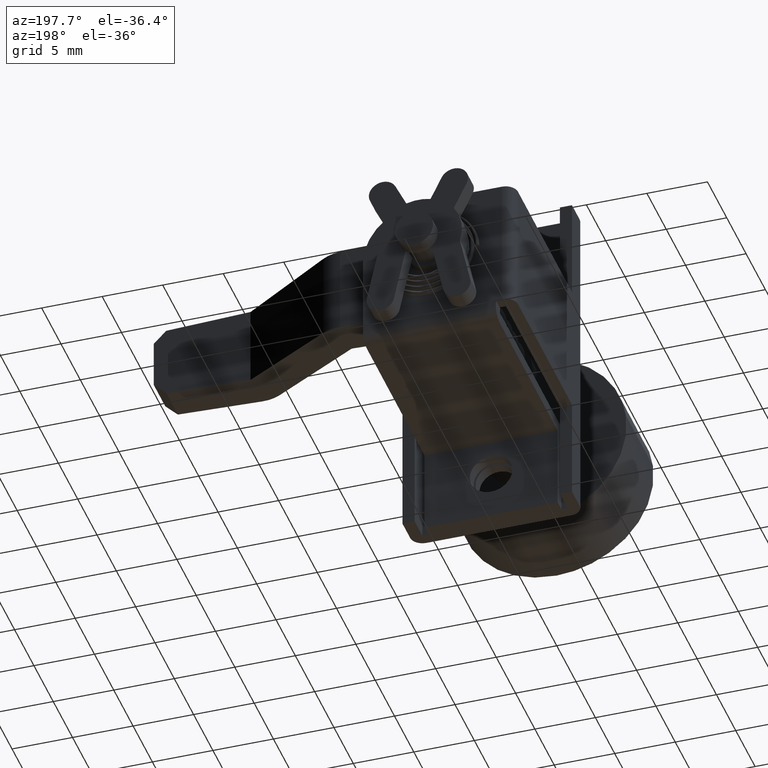
[diagram: clean part render]
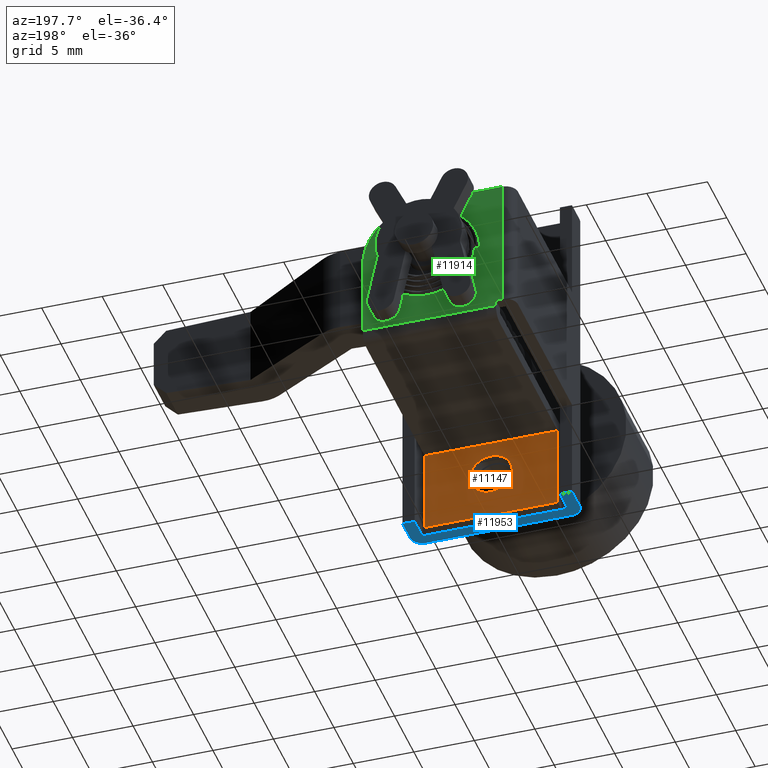
[diagram: same view with three faces highlighted in distinct colors, each labeled with its STEP entity id]
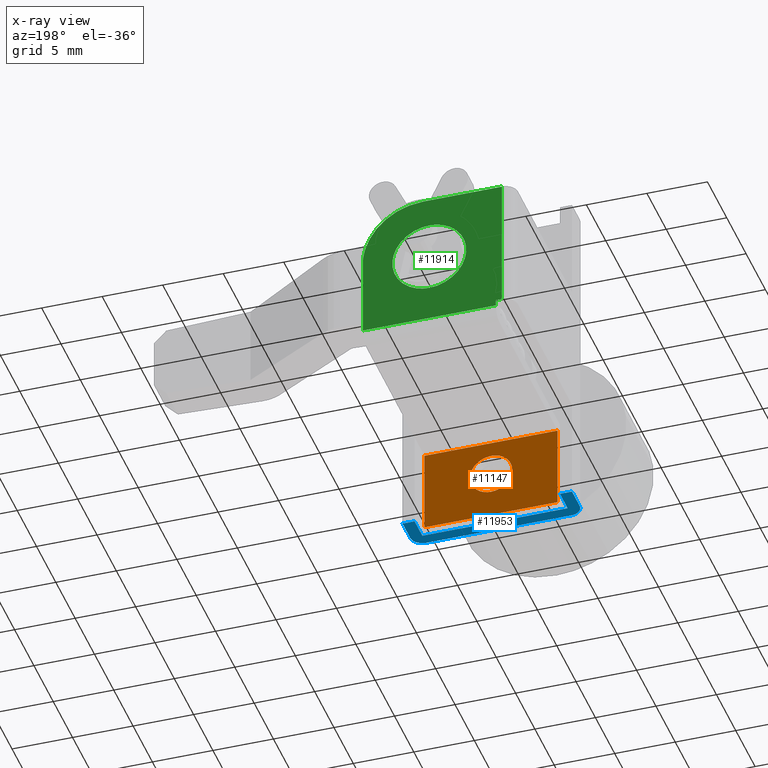
[diagram: x-ray of the same camera — body ghosted, the three highlighted faces saturated]
A machine part, auxiliary view with three faces highlighted in distinct colors.
The next image is the same camera in x-ray (body ghosted, the three faces saturated) — at least one of them is partly hidden behind the body in this view.
Their STEP definitions:

[orange] entity #11147 — the highlighted face is a freeform B-spline surface patch.
#10294=CARTESIAN_POINT('',(2.0,-1.736465874187955,-10.217224003693561));
#10295=VERTEX_POINT('',#10294);
#10301=CARTESIAN_POINT('',(2.0,0.0,-11.750000000000000));
#10302=VERTEX_POINT('',#10301);
#10303=CARTESIAN_POINT('',(2.000000000000000,-1.736465874187955,-10.217224003693563));
#10304=CARTESIAN_POINT('',(1.999999999999999,-1.544722550166328,-11.750000000000004));
#10305=CARTESIAN_POINT('',(2.0,0.0,-11.750000000000000));
#10313=(BOUNDED_CURVE()B_SPLINE_CURVE(2,(#10303,#10304,#10305),.UNSPECIFIED.,.F.,.U.)B_SPLINE_CURVE_WITH_KNOTS((3,3),(0.271473928981163,0.500000000000000),.UNSPECIFIED.)CURVE()GEOMETRIC_REPRESENTATION_ITEM()RATIONAL_B_SPLINE_CURVE((0.954005430254416,0.732265053906005,1.0))REPRESENTATION_ITEM(''));
#10314=EDGE_CURVE('',#10295,#10302,#10313,.T.);
#10316=CARTESIAN_POINT('',(2.0,1.749933365361351,-9.984728562769170));
#10317=VERTEX_POINT('',#10316);
#10318=CARTESIAN_POINT('',(2.0,0.0,-11.750000000000000));
#10319=CARTESIAN_POINT('',(2.0,1.750000000000000,-11.750000000000004));
#10320=CARTESIAN_POINT('',(2.0,1.750000000000000,-10.0));
#10321=CARTESIAN_POINT('',(2.000000000000000,1.749999999999999,-9.992364135955091));
#10322=CARTESIAN_POINT('',(2.000000000000000,1.749933365361351,-9.984728562769170));
#10330=(BOUNDED_CURVE()B_SPLINE_CURVE(2,(#10318,#10319,#10320,#10321,#10322),.UNSPECIFIED.,.F.,.U.)B_SPLINE_CURVE_WITH_KNOTS((3,2,3),(0.500000000000000,0.750000000000000,0.751539894356865),.UNSPECIFIED.)CURVE()GEOMETRIC_REPRESENTATION_ITEM()RATIONAL_B_SPLINE_CURVE((1.0,0.707106781186547,1.0,0.998195901540741,0.996414028049775))REPRESENTATION_ITEM(''));
#10331=EDGE_CURVE('',#10302,#10317,#10330,.T.);
#10411=CARTESIAN_POINT('',(2.0,0.0,-8.250000000000000));
#10412=VERTEX_POINT('',#10411);
#10413=CARTESIAN_POINT('',(2.000000000000000,1.749933365361351,-9.984728562769170));
#10414=CARTESIAN_POINT('',(2.000000000000000,1.734794618325733,-8.250000000000000));
#10415=CARTESIAN_POINT('',(2.0,0.0,-8.250000000000000));
#10423=(BOUNDED_CURVE()B_SPLINE_CURVE(2,(#10413,#10414,#10415),.UNSPECIFIED.,.F.,.U.)B_SPLINE_CURVE_WITH_KNOTS((3,3),(0.751539894356865,1.0),.UNSPECIFIED.)CURVE()GEOMETRIC_REPRESENTATION_ITEM()RATIONAL_B_SPLINE_CURVE((0.996414028049774,0.708910879645807,1.0))REPRESENTATION_ITEM(''));
#10424=EDGE_CURVE('',#10317,#10412,#10423,.T.);
#10426=CARTESIAN_POINT('',(2.0,0.0,-8.250000000000000));
#10427=CARTESIAN_POINT('',(2.0,-1.750000000000000,-8.250000000000000));
#10428=CARTESIAN_POINT('',(2.0,-1.750000000000000,-10.0));
#10429=CARTESIAN_POINT('',(2.000000000000000,-1.750000000000000,-10.109033623238105));
#10430=CARTESIAN_POINT('',(2.000000000000000,-1.736465874187955,-10.217224003693563));
#10438=(BOUNDED_CURVE()B_SPLINE_CURVE(2,(#10426,#10427,#10428,#10429,#10430),.UNSPECIFIED.,.F.,.U.)B_SPLINE_CURVE_WITH_KNOTS((3,2,3),(0.0,0.250000000000000,0.271473928981163),.UNSPECIFIED.)CURVE()GEOMETRIC_REPRESENTATION_ITEM()RATIONAL_B_SPLINE_CURVE((1.0,0.707106781186547,1.0,0.974841727280543,0.954005430254416))REPRESENTATION_ITEM(''));
#10439=EDGE_CURVE('',#10412,#10295,#10438,.T.);
#11106=CARTESIAN_POINT('',(2.0,-6.049449978679865,-14.349649986432640));
#11107=CARTESIAN_POINT('',(2.0,-6.049449978679865,-6.650349825812726));
#11108=CARTESIAN_POINT('',(2.0,6.049450273722857,-14.349649986432640));
#11109=CARTESIAN_POINT('',(2.0,6.049450273722857,-6.650349825812726));
#11110=B_SPLINE_SURFACE_WITH_KNOTS('',1,1,((#11106,#11108),(#11107,#11109)),.UNSPECIFIED.,.F.,.F.,.U.,(2,2),(2,2),(0.0,7.699300160619917),(0.0,12.098900252402720),.UNSPECIFIED.);
#11111=CARTESIAN_POINT('',(2.0,-5.500000000000000,-14.0));
#11112=VERTEX_POINT('',#11111);
#11113=CARTESIAN_POINT('',(2.0,5.500000000000000,-14.0));
#11114=VERTEX_POINT('',#11113);
#11115=CARTESIAN_POINT('',(2.0,-5.500000000000000,-14.0));
#11116=CARTESIAN_POINT('',(2.0,5.500000000000000,-14.0));
#11117=QUASI_UNIFORM_CURVE('',1,(#11115,#11116),.UNSPECIFIED.,.F.,.U.);
#11118=EDGE_CURVE('',#11112,#11114,#11117,.T.);
#11119=ORIENTED_EDGE('',*,*,#11118,.T.);
#11120=CARTESIAN_POINT('',(2.0,5.500000000000000,-7.0));
#11121=VERTEX_POINT('',#11120);
#11122=CARTESIAN_POINT('',(2.0,5.500000000000000,-7.0));
#11123=CARTESIAN_POINT('',(2.0,5.500000000000000,-14.0));
#11124=QUASI_UNIFORM_CURVE('',1,(#11122,#11123),.UNSPECIFIED.,.F.,.U.);
#11125=EDGE_CURVE('',#11121,#11114,#11124,.T.);
#11126=ORIENTED_EDGE('',*,*,#11125,.F.);
#11127=CARTESIAN_POINT('',(2.0,-5.500000000000000,-7.0));
#11128=VERTEX_POINT('',#11127);
#11129=CARTESIAN_POINT('',(2.0,-5.500000000000000,-7.0));
#11130=CARTESIAN_POINT('',(2.0,5.500000000000000,-7.0));
#11131=QUASI_UNIFORM_CURVE('',1,(#11129,#11130),.UNSPECIFIED.,.F.,.U.);
#11132=EDGE_CURVE('',#11128,#11121,#11131,.T.);
#11133=ORIENTED_EDGE('',*,*,#11132,.F.);
#11134=CARTESIAN_POINT('',(2.0,-5.500000000000000,-7.0));
#11135=CARTESIAN_POINT('',(2.0,-5.500000000000000,-14.0));
#11136=QUASI_UNIFORM_CURVE('',1,(#11134,#11135),.UNSPECIFIED.,.F.,.U.);
#11137=EDGE_CURVE('',#11128,#11112,#11136,.T.);
#11138=ORIENTED_EDGE('',*,*,#11137,.T.);
#11139=EDGE_LOOP('',(#11119,#11126,#11133,#11138));
#11140=FACE_OUTER_BOUND('',#11139,.T.);
#11141=ORIENTED_EDGE('',*,*,#10331,.F.);
#11142=ORIENTED_EDGE('',*,*,#10314,.F.);
#11143=ORIENTED_EDGE('',*,*,#10439,.F.);
#11144=ORIENTED_EDGE('',*,*,#10424,.F.);
#11145=EDGE_LOOP('',(#11141,#11142,#11143,#11144));
#11146=FACE_BOUND('',#11145,.T.);
#11147=ADVANCED_FACE('',(#11140,#11146),#11110,.F.);

[blue] entity #11953 — the highlighted face is a freeform B-spline surface patch.
#11455=CARTESIAN_POINT('',(-8.881784E-016,6.0,-13.999999722243301));
#11456=VERTEX_POINT('',#11455);
#11462=CARTESIAN_POINT('',(7.347638E-016,-6.0,-13.999999722243301));
#11463=VERTEX_POINT('',#11462);
#11464=CARTESIAN_POINT('',(-8.881784E-016,6.0,-13.999999722243301));
#11465=CARTESIAN_POINT('',(7.347638E-016,-6.0,-13.999999722243301));
#11466=QUASI_UNIFORM_CURVE('',1,(#11464,#11465),.UNSPECIFIED.,.F.,.U.);
#11467=EDGE_CURVE('',#11456,#11463,#11466,.T.);
#11510=CARTESIAN_POINT('',(1.0,7.0,-13.999999722243301));
#11511=VERTEX_POINT('',#11510);
#11517=CARTESIAN_POINT('',(1.0,7.0,-13.999999722243301));
#11518=CARTESIAN_POINT('',(0.0,6.999999999999999,-13.999999722243301));
#11519=CARTESIAN_POINT('',(0.0,6.0,-13.999999722243301));
#11527=(BOUNDED_CURVE()B_SPLINE_CURVE(2,(#11517,#11518,#11519),.UNSPECIFIED.,.F.,.U.)CURVE()GEOMETRIC_REPRESENTATION_ITEM()QUASI_UNIFORM_CURVE()RATIONAL_B_SPLINE_CURVE((1.0,0.707106781186548,1.0))REPRESENTATION_ITEM(''));
#11528=EDGE_CURVE('',#11511,#11456,#11527,.T.);
#11560=CARTESIAN_POINT('',(3.0,7.0,-13.999999722243301));
#11561=VERTEX_POINT('',#11560);
#11567=CARTESIAN_POINT('',(3.0,7.0,-13.999999722243301));
#11568=CARTESIAN_POINT('',(1.0,7.0,-13.999999722243301));
#11569=QUASI_UNIFORM_CURVE('',1,(#11567,#11568),.UNSPECIFIED.,.F.,.U.);
#11570=EDGE_CURVE('',#11561,#11511,#11569,.T.);
#11604=CARTESIAN_POINT('',(1.0,6.0,-13.999999722243301));
#11605=VERTEX_POINT('',#11604);
#11611=CARTESIAN_POINT('',(3.0,6.0,-13.999999722243301));
#11612=VERTEX_POINT('',#11611);
#11613=CARTESIAN_POINT('',(1.0,6.0,-13.999999722243301));
#11614=CARTESIAN_POINT('',(3.0,6.0,-13.999999722243301));
#11615=QUASI_UNIFORM_CURVE('',1,(#11613,#11614),.UNSPECIFIED.,.F.,.U.);
#11616=EDGE_CURVE('',#11605,#11612,#11615,.T.);
#11654=CARTESIAN_POINT('',(3.0,-6.0,-13.999999722243301));
#11655=VERTEX_POINT('',#11654);
#11661=CARTESIAN_POINT('',(1.0,-6.0,-13.999999722243301));
#11662=VERTEX_POINT('',#11661);
#11663=CARTESIAN_POINT('',(3.0,-6.0,-13.999999722243301));
#11664=CARTESIAN_POINT('',(1.0,-6.0,-13.999999722243301));
#11665=QUASI_UNIFORM_CURVE('',1,(#11663,#11664),.UNSPECIFIED.,.F.,.U.);
#11666=EDGE_CURVE('',#11655,#11662,#11665,.T.);
#11682=CARTESIAN_POINT('',(3.0,-7.0,-13.999999722243301));
#11683=VERTEX_POINT('',#11682);
#11689=CARTESIAN_POINT('',(3.0,-7.0,-13.999999722243301));
#11690=CARTESIAN_POINT('',(3.0,-6.0,-13.999999722243301));
#11691=QUASI_UNIFORM_CURVE('',1,(#11689,#11690),.UNSPECIFIED.,.F.,.U.);
#11692=EDGE_CURVE('',#11683,#11655,#11691,.T.);
#11704=CARTESIAN_POINT('',(1.0,-7.0,-13.999999722243301));
#11705=VERTEX_POINT('',#11704);
#11711=CARTESIAN_POINT('',(1.0,-7.0,-13.999999722243301));
#11712=CARTESIAN_POINT('',(3.0,-7.0,-13.999999722243301));
#11713=QUASI_UNIFORM_CURVE('',1,(#11711,#11712),.UNSPECIFIED.,.F.,.U.);
#11714=EDGE_CURVE('',#11705,#11683,#11713,.T.);
#11736=CARTESIAN_POINT('',(0.0,-6.0,-13.999999722243301));
#11737=CARTESIAN_POINT('',(0.0,-6.999999999999999,-13.999999722243301));
#11738=CARTESIAN_POINT('',(1.0,-7.0,-13.999999722243301));
#11746=(BOUNDED_CURVE()B_SPLINE_CURVE(2,(#11736,#11737,#11738),.UNSPECIFIED.,.F.,.U.)CURVE()GEOMETRIC_REPRESENTATION_ITEM()QUASI_UNIFORM_CURVE()RATIONAL_B_SPLINE_CURVE((1.0,0.707106781186548,1.0))REPRESENTATION_ITEM(''));
#11747=EDGE_CURVE('',#11463,#11705,#11746,.T.);
#11765=CARTESIAN_POINT('',(3.0,6.0,-13.999999722243301));
#11766=CARTESIAN_POINT('',(3.0,7.0,-13.999999722243301));
#11767=QUASI_UNIFORM_CURVE('',1,(#11765,#11766),.UNSPECIFIED.,.F.,.U.);
#11768=EDGE_CURVE('',#11612,#11561,#11767,.T.);
#11817=CARTESIAN_POINT('',(1.0,-6.0,-13.999999722243301));
#11818=CARTESIAN_POINT('',(1.0,6.0,-13.999999722243301));
#11819=QUASI_UNIFORM_CURVE('',1,(#11817,#11818),.UNSPECIFIED.,.F.,.U.);
#11820=EDGE_CURVE('',#11662,#11605,#11819,.T.);
#11936=CARTESIAN_POINT('',(-0.149849994185419,7.699299972865286,-13.999999722243301));
#11937=CARTESIAN_POINT('',(3.149850074651689,7.699299972865286,-13.999999722243301));
#11938=CARTESIAN_POINT('',(-0.149849994185419,-7.699300348374547,-13.999999722243301));
#11939=CARTESIAN_POINT('',(3.149850074651689,-7.699300348374547,-13.999999722243301));
#11940=B_SPLINE_SURFACE_WITH_KNOTS('',1,1,((#11936,#11938),(#11937,#11939)),.UNSPECIFIED.,.F.,.F.,.U.,(2,2),(2,2),(0.0,3.299700068837108),(0.0,15.398600321239829),.UNSPECIFIED.);
#11941=ORIENTED_EDGE('',*,*,#11616,.F.);
#11942=ORIENTED_EDGE('',*,*,#11820,.F.);
#11943=ORIENTED_EDGE('',*,*,#11666,.F.);
#11944=ORIENTED_EDGE('',*,*,#11692,.F.);
#11945=ORIENTED_EDGE('',*,*,#11714,.F.);
#11946=ORIENTED_EDGE('',*,*,#11747,.F.);
#11947=ORIENTED_EDGE('',*,*,#11467,.F.);
#11948=ORIENTED_EDGE('',*,*,#11528,.F.);
#11949=ORIENTED_EDGE('',*,*,#11570,.F.);
#11950=ORIENTED_EDGE('',*,*,#11768,.F.);
#11951=EDGE_LOOP('',(#11941,#11942,#11943,#11944,#11945,#11946,#11947,#11948,#11949,#11950));
#11952=FACE_OUTER_BOUND('',#11951,.T.);
#11953=ADVANCED_FACE('',(#11952),#11940,.T.);

[green] entity #11914 — the highlighted face is a freeform B-spline surface patch.
#10095=CARTESIAN_POINT('',(18.0,0.0,3.050000000000000));
#10096=VERTEX_POINT('',#10095);
#10097=CARTESIAN_POINT('',(18.0,-3.040597867884037,0.239300241995379));
#10098=VERTEX_POINT('',#10097);
#10099=CARTESIAN_POINT('',(18.0,0.0,3.050000000000000));
#10100=CARTESIAN_POINT('',(18.000000000000004,-2.819390999510188,3.050000000000001));
#10101=CARTESIAN_POINT('',(18.000000000000004,-3.040597867884037,0.239300241995379));
#10109=(BOUNDED_CURVE()B_SPLINE_CURVE(2,(#10099,#10100,#10101),.UNSPECIFIED.,.F.,.U.)B_SPLINE_CURVE_WITH_KNOTS((3,3),(0.0,0.236331300629897),.UNSPECIFIED.)CURVE()GEOMETRIC_REPRESENTATION_ITEM()RATIONAL_B_SPLINE_CURVE((1.0,0.723120658608559,0.969723356165827))REPRESENTATION_ITEM(''));
#10110=EDGE_CURVE('',#10096,#10098,#10109,.T.);
#10151=CARTESIAN_POINT('',(18.0,3.040597867884037,-0.239300241995380));
#10152=VERTEX_POINT('',#10151);
#10158=CARTESIAN_POINT('',(17.999999999999996,3.040597867884037,-0.239300241995380));
#10159=CARTESIAN_POINT('',(17.999999999999993,3.050000000000000,-0.119834826398962));
#10160=CARTESIAN_POINT('',(18.0,3.050000000000000,0.0));
#10161=CARTESIAN_POINT('',(18.000000000000007,3.050000000000001,3.050000000000001));
#10162=CARTESIAN_POINT('',(18.0,0.0,3.050000000000000));
#10170=(BOUNDED_CURVE()B_SPLINE_CURVE(2,(#10158,#10159,#10160,#10161,#10162),.UNSPECIFIED.,.F.,.U.)B_SPLINE_CURVE_WITH_KNOTS((3,2,3),(0.736331300629897,0.750000000000000,1.0),.UNSPECIFIED.)CURVE()GEOMETRIC_REPRESENTATION_ITEM()RATIONAL_B_SPLINE_CURVE((0.969723356165826,0.983986122577989,1.0,0.707106781186547,1.0))REPRESENTATION_ITEM(''));
#10171=EDGE_CURVE('',#10152,#10096,#10170,.T.);
#10194=CARTESIAN_POINT('',(18.0,0.0,-3.050000000000000));
#10195=VERTEX_POINT('',#10194);
#10196=CARTESIAN_POINT('',(18.000000000000004,-3.040597867884037,0.239300241995379));
#10197=CARTESIAN_POINT('',(18.000000000000004,-3.050000000000001,0.119834826398962));
#10198=CARTESIAN_POINT('',(18.0,-3.050000000000000,0.0));
#10199=CARTESIAN_POINT('',(18.000000000000007,-3.050000000000001,-3.050000000000001));
#10200=CARTESIAN_POINT('',(18.0,0.0,-3.050000000000000));
#10208=(BOUNDED_CURVE()B_SPLINE_CURVE(2,(#10196,#10197,#10198,#10199,#10200),.UNSPECIFIED.,.F.,.U.)B_SPLINE_CURVE_WITH_KNOTS((3,2,3),(0.236331300629897,0.250000000000000,0.500000000000000),.UNSPECIFIED.)CURVE()GEOMETRIC_REPRESENTATION_ITEM()RATIONAL_B_SPLINE_CURVE((0.969723356165826,0.983986122577989,1.0,0.707106781186547,1.0))REPRESENTATION_ITEM(''));
#10209=EDGE_CURVE('',#10098,#10195,#10208,.T.);
#10211=CARTESIAN_POINT('',(18.0,0.0,-3.050000000000000));
#10212=CARTESIAN_POINT('',(18.000000000000004,2.819390999510190,-3.050000000000000));
#10213=CARTESIAN_POINT('',(17.999999999999996,3.040597867884037,-0.239300241995380));
#10221=(BOUNDED_CURVE()B_SPLINE_CURVE(2,(#10211,#10212,#10213),.UNSPECIFIED.,.F.,.U.)B_SPLINE_CURVE_WITH_KNOTS((3,3),(0.500000000000000,0.736331300629897),.UNSPECIFIED.)CURVE()GEOMETRIC_REPRESENTATION_ITEM()RATIONAL_B_SPLINE_CURVE((1.0,0.723120658608559,0.969723356165827))REPRESENTATION_ITEM(''));
#10222=EDGE_CURVE('',#10195,#10152,#10221,.T.);
#11059=CARTESIAN_POINT('',(18.0,-0.500000000000000,5.500000000000000));
#11060=VERTEX_POINT('',#11059);
#11061=CARTESIAN_POINT('',(18.0,-5.500000000000000,0.500000000000000));
#11062=VERTEX_POINT('',#11061);
#11063=CARTESIAN_POINT('',(18.0,-0.500000000000000,5.500000000000000));
#11064=CARTESIAN_POINT('',(18.000000000000007,-5.500000000000001,5.500000000000001));
#11065=CARTESIAN_POINT('',(18.0,-5.500000000000000,0.500000000000000));
#11073=(BOUNDED_CURVE()B_SPLINE_CURVE(2,(#11063,#11064,#11065),.UNSPECIFIED.,.F.,.U.)CURVE()GEOMETRIC_REPRESENTATION_ITEM()QUASI_UNIFORM_CURVE()RATIONAL_B_SPLINE_CURVE((1.0,0.707106781186548,1.0))REPRESENTATION_ITEM(''));
#11074=EDGE_CURVE('',#11060,#11062,#11073,.T.);
#11173=CARTESIAN_POINT('',(18.0,5.500000000000000,-5.499999999999869));
#11174=VERTEX_POINT('',#11173);
#11180=CARTESIAN_POINT('',(18.0,5.500000000000000,-6.0));
#11181=VERTEX_POINT('',#11180);
#11182=CARTESIAN_POINT('',(18.0,5.500000000000000,-6.0));
#11183=CARTESIAN_POINT('',(18.0,5.500000000000000,-5.499999999999869));
#11184=QUASI_UNIFORM_CURVE('',1,(#11182,#11183),.UNSPECIFIED.,.F.,.U.);
#11185=EDGE_CURVE('',#11181,#11174,#11184,.T.);
#11248=CARTESIAN_POINT('',(18.0,-5.500000000000000,-6.0));
#11249=VERTEX_POINT('',#11248);
#11250=CARTESIAN_POINT('',(18.0,-5.500000000000000,-6.0));
#11251=CARTESIAN_POINT('',(18.0,5.500000000000000,-6.0));
#11252=QUASI_UNIFORM_CURVE('',1,(#11250,#11251),.UNSPECIFIED.,.F.,.U.);
#11253=EDGE_CURVE('',#11249,#11181,#11252,.T.);
#11292=CARTESIAN_POINT('',(18.0,6.0,5.500000000000000));
#11293=VERTEX_POINT('',#11292);
#11309=CARTESIAN_POINT('',(18.0,6.0,-5.499999999999840));
#11310=VERTEX_POINT('',#11309);
#11311=CARTESIAN_POINT('',(18.0,6.0,-5.499999999999840));
#11312=CARTESIAN_POINT('',(18.0,6.0,5.500000000000000));
#11313=QUASI_UNIFORM_CURVE('',1,(#11311,#11312),.UNSPECIFIED.,.F.,.U.);
#11314=EDGE_CURVE('',#11310,#11293,#11313,.T.);
#11788=CARTESIAN_POINT('',(18.0,5.500000000000000,-5.499999999999869));
#11789=CARTESIAN_POINT('',(18.0,6.0,-5.499999999999840));
#11790=QUASI_UNIFORM_CURVE('',1,(#11788,#11789),.UNSPECIFIED.,.F.,.U.);
#11791=EDGE_CURVE('',#11174,#11310,#11790,.T.);
#11857=CARTESIAN_POINT('',(18.0,-0.500000000000000,5.500000000000000));
#11858=CARTESIAN_POINT('',(18.0,6.0,5.500000000000000));
#11859=QUASI_UNIFORM_CURVE('',1,(#11857,#11858),.UNSPECIFIED.,.F.,.U.);
#11860=EDGE_CURVE('',#11060,#11293,#11859,.T.);
#11879=CARTESIAN_POINT('',(18.0,-5.500000000000000,-6.0));
#11880=CARTESIAN_POINT('',(18.0,-5.500000000000000,0.500000000000000));
#11881=QUASI_UNIFORM_CURVE('',1,(#11879,#11880),.UNSPECIFIED.,.F.,.U.);
#11882=EDGE_CURVE('',#11249,#11062,#11881,.T.);
#11894=CARTESIAN_POINT('',(18.0,-6.074424977710769,6.074424977710769));
#11895=CARTESIAN_POINT('',(18.0,-6.074424977710769,-6.574425286164807));
#11896=CARTESIAN_POINT('',(18.0,6.574425286164807,6.074424977710769));
#11897=CARTESIAN_POINT('',(18.0,6.574425286164807,-6.574425286164807));
#11898=B_SPLINE_SURFACE_WITH_KNOTS('',1,1,((#11894,#11896),(#11895,#11897)),.UNSPECIFIED.,.F.,.F.,.U.,(2,2),(2,2),(0.0,12.648850263875580),(0.0,12.648850263875580),.UNSPECIFIED.);
#11899=ORIENTED_EDGE('',*,*,#11860,.F.);
#11900=ORIENTED_EDGE('',*,*,#11074,.T.);
#11901=ORIENTED_EDGE('',*,*,#11882,.F.);
#11902=ORIENTED_EDGE('',*,*,#11253,.T.);
#11903=ORIENTED_EDGE('',*,*,#11185,.T.);
#11904=ORIENTED_EDGE('',*,*,#11791,.T.);
#11905=ORIENTED_EDGE('',*,*,#11314,.T.);
#11906=EDGE_LOOP('',(#11899,#11900,#11901,#11902,#11903,#11904,#11905));
#11907=FACE_OUTER_BOUND('',#11906,.T.);
#11908=ORIENTED_EDGE('',*,*,#10222,.F.);
#11909=ORIENTED_EDGE('',*,*,#10209,.F.);
#11910=ORIENTED_EDGE('',*,*,#10110,.F.);
#11911=ORIENTED_EDGE('',*,*,#10171,.F.);
#11912=EDGE_LOOP('',(#11908,#11909,#11910,#11911));
#11913=FACE_BOUND('',#11912,.T.);
#11914=ADVANCED_FACE('',(#11907,#11913),#11898,.T.);